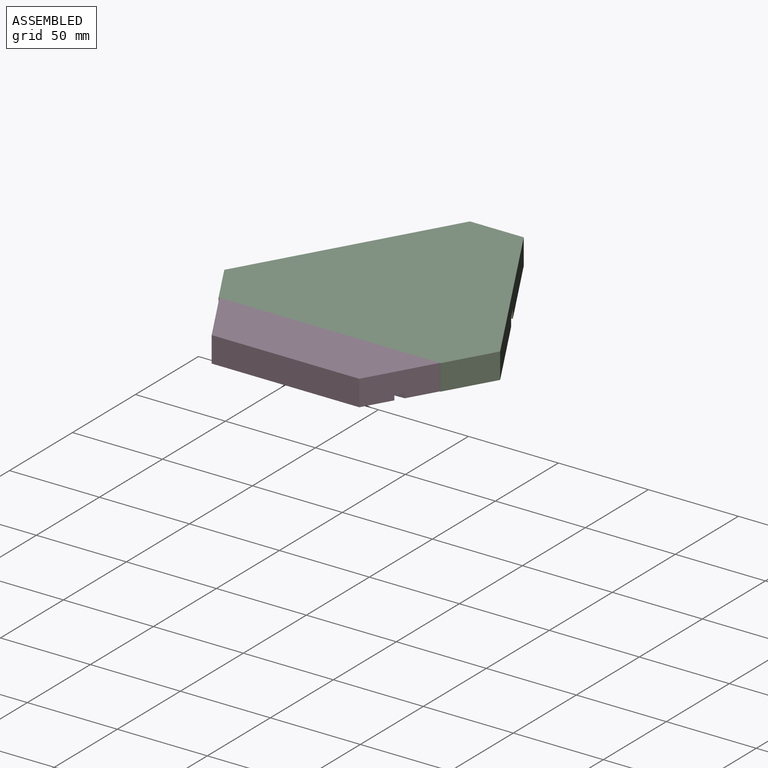
[diagram: assembled view]
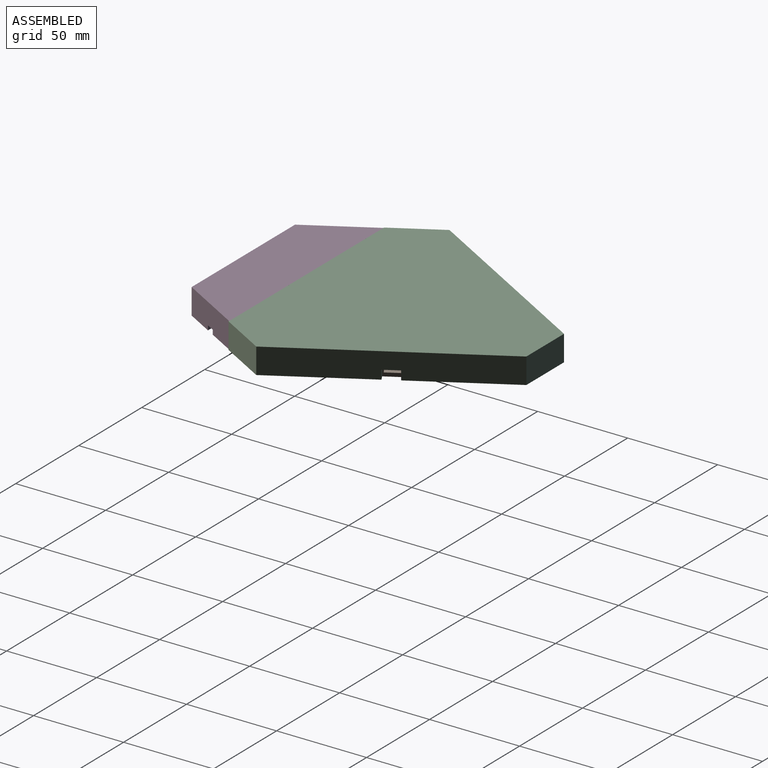
[diagram: assembled view, second angle]
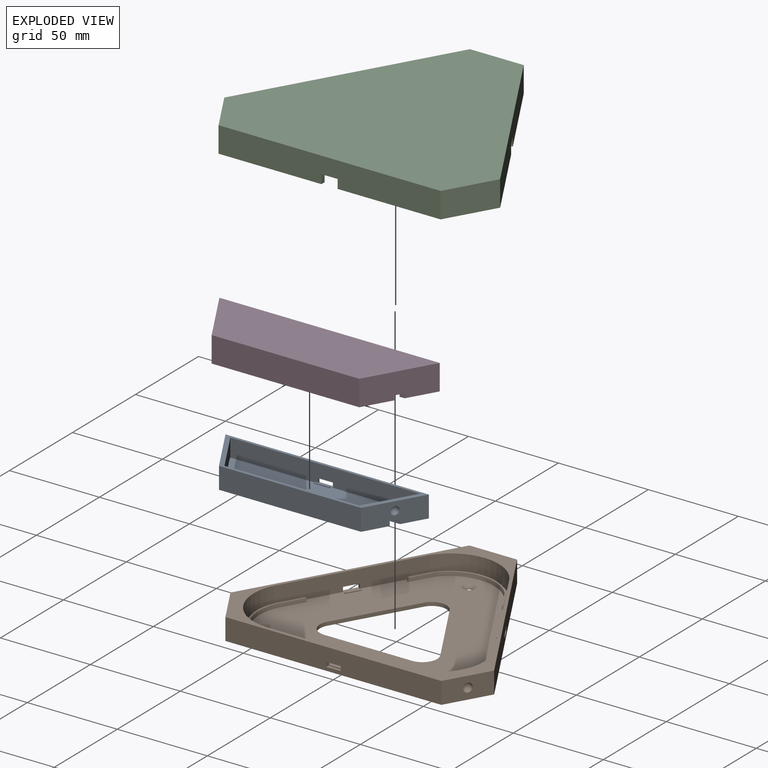
[diagram: exploded view]
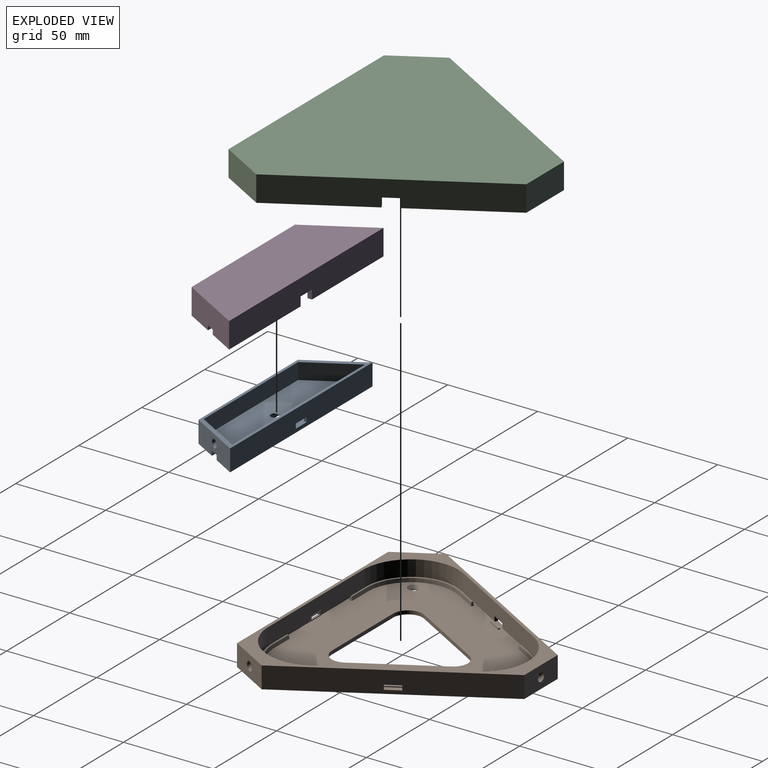
[diagram: exploded view, second angle]
ASSEMBLY  parts=4 mates=3
PART A: 34 faces, bbox 29.5x113x12 mm
  f0: plane 98.57x2.5mm, normal (-1,0,0), area 244.1mm2, adj f1,f2,f3,f26,f27,f28,f29
  f1: plane 29.5x17.03mm, normal (-0.5,0.87,0), area 379.2mm2, adj f0,f2,f5,f8,f9,f10,f25,f27
  f2: plane 113x14.8mm, normal (0,0,-1), area 1330.6mm2, adj f0,f1,f3,f5,f28
  f3: plane 29.5x17.03mm, normal (-0.5,-0.87,0), area 379.2mm2, adj f0,f2,f5,f8,f9,f10,f25,f26
  f4: cylinder r=2.25mm len=4.5mm, axis (0,0,-1), area 7.1mm2, adj f19,f26,f27
  f5: plane 113x12mm, normal (1,0,0), area 1333.9mm2, adj f1,f2,f3,f7,f8,f22,f23,f24
  f6: plane 105.49x10mm, normal (-1,0,0), area 1032.8mm2, adj f7,f8,f11,f12,f22,f23,f24
  f7: plane 105.49x4.5mm, normal (0,0,1), area 315.5mm2, adj f5,f6,f11,f12,f14,f15,f16,f20
  f8: plane 113x29.5mm, normal (0,0,1), area 440.9mm2, adj f1,f3,f5,f6,f9,f11,f12,f13
  f9: plane 78.94x12mm, normal (-1,0,0), area 947.2mm2, adj f1,f3,f8,f10
  f10: plane 93.37x14.8mm, normal (0,0,-1), area 1085.2mm2, adj f1,f3,f9,f25,f30
  f11: plane 26.5x15.3mm, normal (0.5,0.87,0), area 278.9mm2, adj f6,f7,f8,f13,f19,f20
  f12: plane 26.5x15.3mm, normal (0.5,-0.87,0), area 278.9mm2, adj f6,f7,f8,f13,f19,f21
  f13: plane 74.9x9mm, normal (1,0,0), area 674.1mm2, adj f8,f11,f12,f19
  f14: plane 1.5x1mm, normal (0,-1,0), area 1.5mm2, adj f7,f15,f17,f18,f20
  f15: plane 8.5x1.5mm, normal (1,0,0), area 12.8mm2, adj f7,f14,f16,f18
  f16: plane 1.5x1mm, normal (0,1,0), area 1.5mm2, adj f7,f15,f17,f18,f21
  f17: plane 8.5x0.5mm, normal (-1,0,0), area 4.3mm2, adj f14,f16,f18,f19
  f18: plane 8.5x1mm, normal (0,0,1), area 8.5mm2, adj f14,f15,f16,f17
  f19: plane 102.03x23.5mm, normal (0,0,1), area 2063mm2, adj f4,f11,f12,f13,f17,f20,f21
  f20: plane 46.77x1mm, normal (1,0,0), area 46.8mm2, adj f7,f11,f14,f19
  f21: plane 46.77x1mm, normal (1,0,0), area 46.8mm2, adj f7,f12,f16,f19
  f22: plane 2.6x1.5mm, normal (0,-1,0), area 3.9mm2, adj f5,f6,f7,f24
  f23: plane 2.6x1.5mm, normal (0,1,0), area 3.9mm2, adj f5,f6,f7,f24
  f24: plane 8.5x1.5mm, normal (0,0,-1), area 12.7mm2, adj f5,f6,f22,f23
  f25: plane 93.37x2.5mm, normal (1,0,0), area 231.1mm2, adj f1,f3,f10,f26,f27,f30,f31
  f26: plane 49.28x4.5mm, normal (0,0,-1), area 208mm2, adj f0,f3,f4,f25
  f27: plane 49.28x4.5mm, normal (0,0,-1), area 208mm2, adj f0,f1,f4,f25
  f28: cylinder r=2.3mm len=4.6mm, axis (0,0,-1), area 3.6mm2, adj f0,f2,f29
  f29: plane 4.6x2.3mm, normal (0,0,1), area 8.3mm2, adj f0,f28
  f30: cylinder r=2.3mm len=4.6mm, axis (0,0,-1), area 3.6mm2, adj f10,f25,f31
  f31: plane 4.6x2.3mm, normal (0,0,1), area 8.3mm2, adj f25,f30
  f32: sphere r=2.3mm, area 33.2mm2, adj f3
  f33: sphere r=2.3mm, area 33.2mm2, adj f1
PART B: 86 faces, bbox 146.5x126.9x12 mm
  f0: plane 8x1.5mm, normal (0,0,1), area 12mm2, adj f1,f68,f69,f78
  f1: plane 120x12mm, normal (0,-1,0), area 1420mm2, adj f0,f10,f11,f14,f15,f68,f69,f70
  f2: plane 103.92x60mm, normal (-0.87,0.5,0), area 1417.9mm2, adj f4,f10,f13,f14,f15,f62,f63,f64
  f3: plane 67.67x39.07mm, normal (0.87,-0.5,0), area 759.3mm2, adj f4,f6,f9,f14,f62,f63,f64
  f4: plane 128.26x118.17mm, normal (0,0,1), area 7752.9mm2, adj f2,f3,f5,f6,f7,f8,f9,f12
  f5: plane 78x10mm, normal (0,1,0), area 760mm2, adj f4,f8,f9,f14,f71,f72,f73
  f6: cylinder r=26.64mm len=44.49mm, axis (0,0,-1), area 526.4mm2, adj f3,f4,f7,f14
  f7: plane 67.67x39.07mm, normal (-0.87,-0.5,0), area 759.3mm2, adj f4,f6,f8,f14,f65,f66,f67
  f8: cylinder r=26.63mm len=38.52mm, axis (0,0,-1), area 527.1mm2, adj f4,f5,f7,f14
  f9: cylinder r=26.63mm len=38.52mm, axis (0,0,-1), area 527.1mm2, adj f3,f4,f5,f14
  f10: plane 22.95x13.25mm, normal (-0.87,-0.5,0), area 298.4mm2, adj f1,f2,f14,f15,f59
  f11: plane 22.95x13.25mm, normal (0.87,-0.5,0), area 298.4mm2, adj f1,f12,f14,f15,f60
  f12: plane 103.92x60mm, normal (0.87,0.5,0), area 1417.9mm2, adj f4,f11,f13,f14,f15,f65,f66,f67
  f13: plane 26.5x12mm, normal (0,1,0), area 298.4mm2, adj f2,f12,f14,f15,f61
  f14: plane 146.5x126.87mm, normal (0,0,1), area 1401.3mm2, adj f1,f2,f3,f5,f6,f7,f8,f9
  f15: plane 146.5x126.87mm, normal (0,0,-1), area 9586.7mm2, adj f1,f2,f10,f11,f12,f13,f16,f17
  f16: plane 42.24x24.39mm, normal (0.87,-0.5,0), area 97.5mm2, adj f4,f15,f17,f21
  f17: cylinder r=8.16mm len=14.14mm, axis (0,0,-1), area 34.2mm2, adj f4,f15,f16,f18
  f18: plane 42.24x24.39mm, normal (-0.87,-0.5,0), area 97.5mm2, adj f4,f15,f17,f19
  f19: cylinder r=8.16mm len=12.24mm, axis (0,0,-1), area 34.2mm2, adj f4,f15,f18,f20
  f20: plane 48.77x2mm, normal (0,1,0), area 97.5mm2, adj f4,f15,f19,f21
  f21: cylinder r=8.16mm len=12.24mm, axis (0,0,-1), area 34.2mm2, adj f4,f15,f16,f20
  f22: plane 13.07x7.57mm, normal (-0.85,0.49,0.17), area 29.9mm2, adj f4,f23,f29,f30
  f23: cone r=25.62mm half-angle=10deg, axis (0,0,-1), area 102.9mm2, adj f4,f22,f24,f30
  f24: plane 13.64x2mm, normal (0,-0.98,0.17), area 27.3mm2, adj f4,f23,f25,f30
  f25: plane 2x1.51mm, normal (0.98,0,0.17), area 2.3mm2, adj f4,f24,f26,f30
  f26: plane 13.67x2mm, normal (0,0.98,0.17), area 27.4mm2, adj f4,f25,f27,f30
  f27: cone r=23.75mm half-angle=10deg, axis (0,0,1), area 99.7mm2, adj f4,f26,f28,f30
  f28: plane 11.82x7.13mm, normal (0.85,-0.49,0.17), area 27.4mm2, adj f4,f27,f29,f30
  f29: plane 2x1.26mm, normal (0.49,0.85,0.17), area 2.2mm2, adj f4,f22,f28,f30
  f30: plane 49.06x37.3mm, normal (0,0,1), area 70.4mm2, adj f22,f23,f24,f25,f26,f27,f28,f29
  f31: plane 12.06x6.97mm, normal (0.85,-0.49,0.17), area 27.5mm2, adj f4,f32,f38,f39
  f32: cone r=24.96mm half-angle=10deg, axis (0,0,1), area 88.2mm2, adj f4,f31,f33,f39
  f33: plane 12.06x6.97mm, normal (-0.85,-0.49,0.17), area 27.5mm2, adj f4,f32,f34,f39
  f34: plane 2x1.26mm, normal (0.49,-0.85,0.17), area 2.2mm2, adj f4,f33,f35,f39
  f35: plane 10.72x6.49mm, normal (0.85,0.49,0.17), area 24.8mm2, adj f4,f34,f36,f39
  f36: cone r=26.04mm half-angle=10deg, axis (0,0,-1), area 98.8mm2, adj f4,f35,f37,f39
  f37: plane 10.72x6.49mm, normal (-0.85,0.49,0.17), area 24.8mm2, adj f4,f36,f38,f39
  f38: plane 2x1.26mm, normal (-0.49,-0.85,0.17), area 2.2mm2, adj f4,f31,f37,f39
  f39: plane 53.31x21.43mm, normal (0,0,1), area 60.8mm2, adj f31,f32,f33,f34,f35,f36,f37,f38
  f40: plane 13.67x2mm, normal (0,0.98,0.17), area 27.4mm2, adj f4,f41,f47,f48
  f41: plane 2x1.51mm, normal (-0.98,0,0.17), area 2.3mm2, adj f4,f40,f42,f48
  f42: plane 13.64x2mm, normal (0,-0.98,0.17), area 27.3mm2, adj f4,f41,f43,f48
  f43: cone r=25.62mm half-angle=10deg, axis (0,0,-1), area 102.9mm2, adj f4,f42,f44,f48
  f44: plane 13.07x7.57mm, normal (0.85,0.49,0.17), area 29.9mm2, adj f4,f43,f45,f48
  f45: plane 2x1.26mm, normal (-0.49,0.85,0.17), area 2.2mm2, adj f4,f44,f46,f48
  f46: plane 11.82x7.13mm, normal (-0.85,-0.49,0.17), area 27.4mm2, adj f4,f45,f47,f48
  f47: cone r=23.75mm half-angle=10deg, axis (0,0,1), area 99.7mm2, adj f4,f40,f46,f48
  f48: plane 49.06x37.3mm, normal (0,0,1), area 70.4mm2, adj f40,f41,f42,f43,f44,f45,f46,f47
  f49: plane 7.86x5.12mm, normal (0,0,1), area 8.5mm2, adj f50,f51,f52,f53
  f50: plane 0.87x0.5mm, normal (0.5,0.87,0), area 0.5mm2, adj f4,f49,f51,f53
  f51: plane 7.36x4.25mm, normal (0.87,-0.5,0), area 4.3mm2, adj f4,f49,f50,f52
  f52: plane 0.87x0.5mm, normal (-0.5,-0.87,0), area 0.5mm2, adj f4,f49,f51,f53
  f53: plane 7.36x4.25mm, normal (-0.87,0.5,0), area 4.3mm2, adj f4,f49,f50,f52
  f54: plane 7.86x5.12mm, normal (0,0,1), area 8.5mm2, adj f55,f56,f57,f58
  f55: plane 0.87x0.5mm, normal (0.5,-0.87,0), area 0.5mm2, adj f4,f54,f56,f58
  f56: plane 7.36x4.25mm, normal (-0.87,-0.5,0), area 4.3mm2, adj f4,f54,f55,f57
  f57: plane 0.87x0.5mm, normal (-0.5,0.87,0), area 0.5mm2, adj f4,f54,f56,f58
  f58: plane 7.36x4.25mm, normal (0.87,0.5,0), area 4.3mm2, adj f4,f54,f55,f57
  f59: sphere r=2.5mm, area 39.3mm2, adj f10
  f60: sphere r=2.5mm, area 39.3mm2, adj f11
  f61: sphere r=2.5mm, area 39.3mm2, adj f13
  f62: plane 2.6x1.47mm, normal (0.5,0.87,0), area 4.4mm2, adj f2,f3,f4,f64
  f63: plane 2.6x1.47mm, normal (-0.5,-0.87,0), area 4.4mm2, adj f2,f3,f4,f64
  f64: plane 8.21x5.72mm, normal (0,0,-1), area 14.5mm2, adj f2,f3,f62,f63
  f65: plane 2.6x1.47mm, normal (0.5,-0.87,0), area 4.4mm2, adj f4,f7,f12,f67
  f66: plane 2.6x1.47mm, normal (-0.5,0.87,0), area 4.4mm2, adj f4,f7,f12,f67
  f67: plane 8.21x5.72mm, normal (0,0,-1), area 14.5mm2, adj f7,f12,f65,f66
  f68: plane 2.5x1.5mm, normal (-1,0,0), area 3.7mm2, adj f0,f1,f70,f78
  f69: plane 2.5x1.5mm, normal (1,0,0), area 3.7mm2, adj f0,f1,f70,f78
  f70: plane 8x1.5mm, normal (0,0,-1), area 12mm2, adj f1,f68,f69,f78
  f71: plane 2.5x0.2mm, normal (1,0,0), area 0.5mm2, adj f4,f5,f73,f79
  f72: plane 2.5x0.2mm, normal (-1,0,0), area 0.5mm2, adj f4,f5,f73,f79
  f73: plane 8x0.2mm, normal (0,0,1), area 1.6mm2, adj f5,f71,f72,f79
  f74: plane 1.5x0.4mm, normal (-1,0,0), area 0.6mm2, adj f75,f77,f78,f79
  f75: plane 7x0.4mm, normal (0,0,-1), area 2.8mm2, adj f74,f76,f78,f79
  f76: plane 1.5x0.4mm, normal (1,0,0), area 0.6mm2, adj f75,f77,f78,f79
  f77: plane 7x0.4mm, normal (0,0,1), area 2.8mm2, adj f74,f76,f78,f79
  f78: plane 8x2.5mm, normal (0,-1,0), area 9.5mm2, adj f0,f68,f69,f70,f74,f75,f76,f77
  f79: plane 8x2.5mm, normal (0,1,0), area 9.5mm2, adj f4,f71,f72,f73,f74,f75,f76,f77
  f80: cylinder r=1.7mm len=3.4mm, axis (0,0,1), area 3.6mm2, adj f15,f81
  f81: cone r=1.7mm half-angle=45deg, axis (0,0,1), area 37.3mm2, adj f4,f80
  f82: cylinder r=1.7mm len=3.4mm, axis (0,0,1), area 3.6mm2, adj f15,f83
  f83: cone r=1.7mm half-angle=45deg, axis (0,0,1), area 37.3mm2, adj f4,f82
  f84: cylinder r=1.7mm len=3.4mm, axis (0,0,1), area 3.6mm2, adj f15,f85
  f85: cone r=1.7mm half-angle=45deg, axis (0,0,1), area 37.3mm2, adj f4,f84
PART C: 51 faces, bbox 153.3x132.7x14.3 mm
  f0: plane 147.5x127.74mm, normal (0,0,-1), area 2486.5mm2, adj f1,f2,f5,f8,f11,f12,f13,f14
  f1: plane 78.5x1.5mm, normal (0,1,0), area 115.8mm2, adj f0,f16,f17,f19,f48,f49,f50
  f2: plane 104.36x60.25mm, normal (-0.87,-0.5,0), area 1331.5mm2, adj f0,f3,f6,f12,f13,f41,f42,f43
  f3: plane 75.41x72.14mm, normal (0,0,-1), area 353.5mm2, adj f2,f4,f8,f10,f12,f20,f29,f41
  f4: plane 106.86x61.69mm, normal (0.87,0.5,0), area 1719.4mm2, adj f3,f6,f20,f22,f23,f41,f42,f43
  f5: plane 104.36x60.25mm, normal (0.87,-0.5,0), area 1331.5mm2, adj f0,f6,f9,f11,f13,f34,f35,f36
  f6: plane 87.08x50.78mm, normal (0,0,-1), area 353.5mm2, adj f2,f4,f5,f7,f13,f22,f34,f43
  f7: plane 106.86x61.69mm, normal (-0.87,0.5,0), area 1719.4mm2, adj f6,f9,f21,f22,f23,f34,f35,f36
  f8: plane 120.5x12.3mm, normal (0,1,0), area 1331.5mm2, adj f0,f3,f9,f11,f12,f27,f28,f29
  f9: plane 75.41x72.14mm, normal (0,0,-1), area 353.5mm2, adj f5,f7,f8,f10,f11,f21,f27,f36
  f10: plane 123.39x14.3mm, normal (0,-1,0), area 1719.4mm2, adj f3,f9,f20,f21,f23,f27,f28,f29
  f11: plane 23.38x13.5mm, normal (0.87,0.5,0), area 330.1mm2, adj f0,f5,f8,f9,f25
  f12: plane 23.38x13.5mm, normal (-0.87,0.5,0), area 330.1mm2, adj f0,f2,f3,f8,f26
  f13: plane 27x12.3mm, normal (0,-1,0), area 330.1mm2, adj f0,f2,f5,f6,f24
  f14: cylinder r=24.7mm len=39.72mm, axis (0,0,1), area 69.2mm2, adj f0,f15,f18,f19
  f15: plane 68.65x39.94mm, normal (-0.86,-0.5,0), area 119.1mm2, adj f0,f14,f16,f19
  f16: cylinder r=24.95mm len=34.58mm, axis (0,0,1), area 70.2mm2, adj f0,f1,f15,f19
  f17: cylinder r=24.95mm len=34.58mm, axis (0,0,1), area 70.2mm2, adj f0,f1,f18,f19
  f18: plane 68.65x39.94mm, normal (0.86,-0.5,0), area 119.1mm2, adj f0,f14,f17,f19
  f19: plane 123.56x113.24mm, normal (0,0,-1), area 9744.2mm2, adj f1,f14,f15,f16,f17,f18
  f20: plane 25.88x14.94mm, normal (0.87,-0.5,0), area 427.4mm2, adj f3,f4,f10,f23
  f21: plane 25.88x14.94mm, normal (-0.87,-0.5,0), area 427.4mm2, adj f7,f9,f10,f23
  f22: plane 29.89x14.3mm, normal (0,1,0), area 427.4mm2, adj f4,f6,f7,f23
  f23: plane 153.27x132.74mm, normal (0,0,1), area 13366.2mm2, adj f4,f7,f10,f20,f21,f22
  f24: sphere r=0.8mm, area 4mm2, adj f13
  f25: sphere r=0.8mm, area 4mm2, adj f11
  f26: sphere r=0.8mm, area 4mm2, adj f12
  f27: plane 5x2.5mm, normal (1,0,0), area 12.5mm2, adj f8,f9,f10,f28
  f28: plane 9x2.5mm, normal (0,0,-1), area 22.5mm2, adj f8,f10,f27,f29
  f29: plane 5x2.5mm, normal (-1,0,0), area 12.5mm2, adj f3,f8,f10,f28
  f30: cylinder r=4.1mm len=8.2mm, axis (0,1,0), area 51.5mm2, adj f8,f31
  f31: plane 8.2x8.2mm, normal (0,1,0), area 52.8mm2, adj f30
  f32: cylinder r=4.1mm len=8.2mm, axis (0,1,0), area 51.5mm2, adj f8,f33
  f33: plane 8.2x8.2mm, normal (0,1,0), area 52.8mm2, adj f32
  f34: plane 5x2.17mm, normal (-0.5,-0.87,0), area 12.5mm2, adj f5,f6,f7,f35
  f35: plane 9.04x6.67mm, normal (0,0,-1), area 22.5mm2, adj f5,f7,f34,f36
  f36: plane 5x2.17mm, normal (0.5,0.87,0), area 12.5mm2, adj f5,f7,f9,f35
  f37: cylinder r=4.1mm len=8.2mm, axis (0.87,-0.5,0), area 51.5mm2, adj f5,f38
  f38: plane 8.2x7.1mm, normal (0.87,-0.5,0), area 52.8mm2, adj f37
  f39: cylinder r=4.1mm len=8.2mm, axis (0.87,-0.5,0), area 51.5mm2, adj f5,f40
  f40: plane 8.2x7.1mm, normal (0.87,-0.5,0), area 52.8mm2, adj f39
  f41: plane 5x2.17mm, normal (-0.5,0.87,0), area 12.5mm2, adj f2,f3,f4,f42
  f42: plane 9.04x6.67mm, normal (0,0,-1), area 22.5mm2, adj f2,f4,f41,f43
  f43: plane 5x2.17mm, normal (0.5,-0.87,0), area 12.5mm2, adj f2,f4,f6,f42
  f44: cylinder r=4.1mm len=8.2mm, axis (-0.87,-0.5,0), area 51.5mm2, adj f2,f45
  f45: plane 8.2x7.1mm, normal (-0.87,-0.5,0), area 52.8mm2, adj f44
  f46: cylinder r=4.1mm len=8.2mm, axis (-0.87,-0.5,0), area 51.5mm2, adj f2,f47
  f47: plane 8.2x7.1mm, normal (-0.87,-0.5,0), area 52.8mm2, adj f46
  f48: plane 3.86x1.97mm, normal (-0.89,0.46,0), area 2.2mm2, adj f0,f1,f49,f50
  f49: plane 3.86x1.97mm, normal (0.89,0.46,0), area 2.2mm2, adj f0,f1,f48,f50
  f50: plane 3.95x3.86mm, normal (0,0,-1), area 7.6mm2, adj f1,f48,f49
PART D: 28 faces, bbox 35x122.5x14.3 mm
  f0: plane 56.73x15.25mm, normal (0,0,1), area 176.8mm2, adj f2,f4,f5,f9,f13,f25
  f1: plane 56.73x15.25mm, normal (0,0,1), area 176.8mm2, adj f3,f4,f5,f11,f15,f20
  f2: plane 35x20.21mm, normal (-0.5,0.87,0), area 564.9mm2, adj f0,f5,f6,f7,f8,f23,f24,f25
  f3: plane 35x20.21mm, normal (-0.5,-0.87,0), area 564.9mm2, adj f1,f5,f6,f7,f8,f20,f21,f22
  f4: plane 113.8x11.8mm, normal (-1,0,0), area 1192.3mm2, adj f0,f1,f9,f11,f12,f13,f14,f15
  f5: plane 122.46x14.3mm, normal (1,0,0), area 1706.2mm2, adj f0,f1,f2,f3,f8,f13,f14,f15
  f6: plane 99.66x15.25mm, normal (0,0,1), area 282.3mm2, adj f2,f3,f7,f9,f10,f11,f22,f23
  f7: plane 82.05x14.3mm, normal (-1,0,0), area 1173.3mm2, adj f2,f3,f6,f8
  f8: plane 122.46x35mm, normal (0,0,-1), area 3579mm2, adj f2,f3,f5,f7
  f9: plane 30x17.32mm, normal (0.5,-0.87,0), area 392.6mm2, adj f0,f4,f6,f10,f12,f23,f24,f25
  f10: plane 79.16x11.8mm, normal (1,0,0), area 934.1mm2, adj f6,f9,f11,f12
  f11: plane 30x17.32mm, normal (0.5,0.87,0), area 392.6mm2, adj f1,f4,f6,f10,f12,f20,f21,f22
  f12: plane 113.8x30mm, normal (0,0,1), area 2894.5mm2, adj f4,f9,f10,f11
  f13: plane 5x2.5mm, normal (0,-1,0), area 12.5mm2, adj f0,f4,f5,f14
  f14: plane 9x2.5mm, normal (0,0,1), area 22.5mm2, adj f4,f5,f13,f15
  f15: plane 5x2.5mm, normal (0,1,0), area 12.5mm2, adj f1,f4,f5,f14
  f16: cylinder r=4.1mm len=8.2mm, axis (-1,0,0), area 51.5mm2, adj f4,f17
  f17: plane 8.2x8.2mm, normal (-1,0,0), area 52.8mm2, adj f16
  f18: cylinder r=4.1mm len=8.2mm, axis (-1,0,0), area 51.5mm2, adj f4,f19
  f19: plane 8.2x8.2mm, normal (-1,0,0), area 52.8mm2, adj f18
  f20: plane 2.89x2.5mm, normal (-1,0,0), area 7.2mm2, adj f1,f3,f11,f21
  f21: plane 5.49x4.5mm, normal (0,0,1), area 13mm2, adj f3,f11,f20,f22
  f22: plane 2.89x2.5mm, normal (1,0,0), area 7.2mm2, adj f3,f6,f11,f21
  f23: plane 2.89x2.5mm, normal (1,0,0), area 7.2mm2, adj f2,f6,f9,f24
  f24: plane 5.49x4.5mm, normal (0,0,1), area 13mm2, adj f2,f9,f23,f25
  f25: plane 2.89x2.5mm, normal (-1,0,0), area 7.2mm2, adj f0,f2,f9,f24
  f26: sphere r=1mm, area 6.3mm2, adj f11
  f27: sphere r=1mm, area 6.3mm2, adj f9
PLACE A rot(axis=(0,0,1),90deg) t=(40.12,-85.31,-2.5)mm
PLACE B t=(0,13.5,-2)mm fixed
PLACE C t=(0.25,5.85,11.5)mm
PLACE D rot(axis=(0.71,0.71,0),180deg) t=(-40.77,-88.31,12)mm
MATE fastened D.f5 <-> C.f10  axis (0,1,0) through (4.75,-53.31,-2.3)mm
MATE fastened B.f14 <-> C.f0  axis (0,0,1) through (-13.25,76.93,10)mm
MATE fastened D.f12 <-> A.f8  axis (0,0,-1) through (57.15,-55.81,9.5)mm
